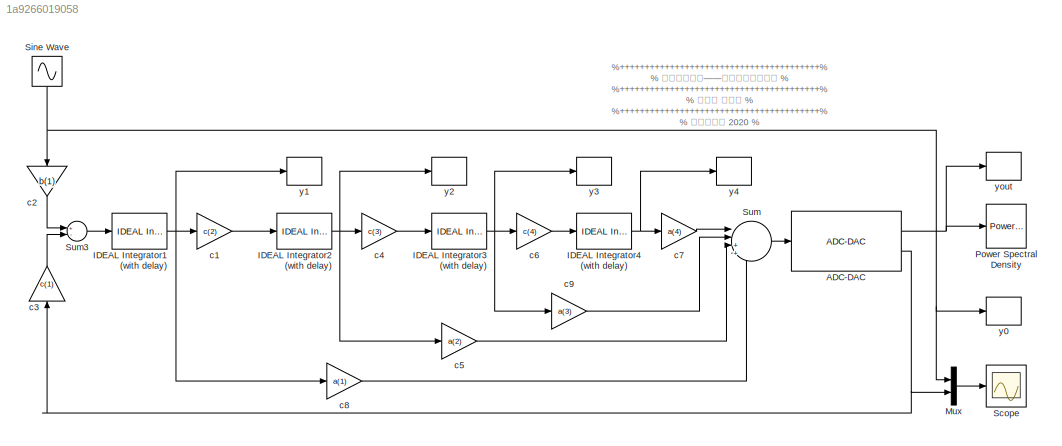
MODEL slx_1a9266019058
KIND model
BLOCK [Reference]  ADC-DAC  REF=SDtoolbox/ADC-DAC
  CST = Cs
  LF = off
  MM = off
  NF = retA.log
  Ports = [1, 2]
  SourceBlock = SDtoolbox/ADC-DAC
  VVG = off
  argo = argo(:,3)
  k = NCOMPARATORI
  match = match
BLOCK [Reference] IDEAL Integrator1 (with delay)  REF=SDtoolbox/IDEAL Integrator
(with Delay)
  Amax = Amax
  Ports = [1, 1]
  SourceBlock = SDtoolbox/IDEAL Integrator\n(with Delay)
  Ts = Ts
BLOCK [Reference] IDEAL Integrator2 (with delay)  REF=SDtoolbox/IDEAL Integrator
(with Delay)
  Amax = Amax
  Ports = [1, 1]
  SourceBlock = SDtoolbox/IDEAL Integrator\n(with Delay)
  Ts = Ts
BLOCK [Reference] IDEAL Integrator3 (with delay)  REF=SDtoolbox/IDEAL Integrator
(with Delay)
  Amax = Amax
  Ports = [1, 1]
  SourceBlock = SDtoolbox/IDEAL Integrator\n(with Delay)
  Ts = Ts
BLOCK [Reference] IDEAL Integrator4 (with delay)  REF=SDtoolbox/IDEAL Integrator
(with Delay)
  Amax = Amax
  Ports = [1, 1]
  SourceBlock = SDtoolbox/IDEAL Integrator\n(with Delay)
  Ts = Ts
BLOCK [Mux] Mux
  DisplayOption = bar
  Inputs = 2
  Ports = [2, 1]
BLOCK [Reference] Power Spectral Density  REF=SDtoolbox/Power Spectral Density
  Fin = Fin
  Fs = Fs
  N = N
  Ntransient = Ntransient
  Ports = [1]
  SN = 7
  Scale_type = logarithmic
  SourceBlock = SDtoolbox/Power Spectral Density
  VW = off
  fBH = Fs/(2*OSR)
  fBL = 1
  savename = savemat
BLOCK [Scope] Scope
  DataFormat = StructureWithTime
  Floating = off
  MaxDataPoints = 500
  NumInputPorts = 1
  Ports = [1]
  SampleTime = 0
  SaveName = ScopeData1
  ShowLegends = off
  YMax = 1
  YMin = -1
  ZoomMode = xonly
BLOCK [Sin] Sine Wave
  Amplitude = Ampl
  Frequency = finrad
  Ports = [0, 1]
  SampleTime = Ts
BLOCK [Sum] Sum
  IconShape = round
  InputSameDT = off
  Inputs = ||++++
  OutDataTypeStr = Inherit: Inherit via internal rule
  Ports = [4, 1]
  SaturateOnIntegerOverflow = off
BLOCK [Sum] Sum3
  Inputs = +-
  Ports = [2, 1]
BLOCK [Gain] c1
  Gain = c(2)
BLOCK [Gain] c2
  Gain = b(1)
BLOCK [Gain] c3
  Gain = c(1)
BLOCK [Gain] c4
  Gain = c(3)
BLOCK [Gain] c5
  Gain = a(2)
BLOCK [Gain] c6
  Gain = c(4)
BLOCK [Gain] c7
  Gain = a(4)
BLOCK [Gain] c8
  Gain = a(1)
BLOCK [Gain] c9
  Gain = a(3)
BLOCK [ToWorkspace] y0
  MaxDataPoints = inf
  Ports = [1]
  SampleTime = -1
  VariableName = y0
BLOCK [ToWorkspace] y1
  MaxDataPoints = inf
  Ports = [1]
  SampleTime = -1
  VariableName = y1
BLOCK [ToWorkspace] y2
  MaxDataPoints = inf
  Ports = [1]
  SampleTime = -1
  VariableName = y2
BLOCK [ToWorkspace] y3
  MaxDataPoints = inf
  Ports = [1]
  SampleTime = -1
  VariableName = y3
BLOCK [ToWorkspace] y4
  MaxDataPoints = inf
  Ports = [1]
  SampleTime = -1
  VariableName = y4
BLOCK [ToWorkspace] yout
  MaxDataPoints = inf
  Ports = [1]
  SampleTime = -1
  VariableName = yout
ANNOTATION (root): %++++++++++++++++++++++++++++++++++++++++% % 模拟电路基础——从系统级到电路级 % %++++++++++++++++++++++++++++++++++++++++% % 陈抗生 周金芳 % %++++++++++++++++++++++++++++++++++++++++% % 科学出版社 2020 % %++++++++++++++++++++++++++++++++++++++++%
NET  ADC-DAC:1 -> Power Spectral Density:1, yout:1
NET  ADC-DAC:2 -> Mux:2, c3:1
NET IDEAL Integrator1 (with delay):1 -> c1:1, c8:1, y1:1
NET IDEAL Integrator2 (with delay):1 -> c4:1, c5:1, y2:1
NET IDEAL Integrator3 (with delay):1 -> c6:1, c9:1, y3:1
NET IDEAL Integrator4 (with delay):1 -> c7:1, y4:1
LINE Mux:1 -> Scope:1
NET Sine Wave:1 -> Mux:1, c2:1, y0:1
LINE Sum3:1 -> IDEAL Integrator1 (with delay):1
LINE Sum:1 ->  ADC-DAC:1
LINE c1:1 -> IDEAL Integrator2 (with delay):1
LINE c2:1 -> Sum3:1
LINE c3:1 -> Sum3:2
LINE c4:1 -> IDEAL Integrator3 (with delay):1
LINE c5:1 -> Sum:3
LINE c6:1 -> IDEAL Integrator4 (with delay):1
LINE c7:1 -> Sum:1
LINE c8:1 -> Sum:4
LINE c9:1 -> Sum:2
note: NET lines group one-source signal fan-out (src -> all destinations, sorted); 1:1 wires keep LINE
